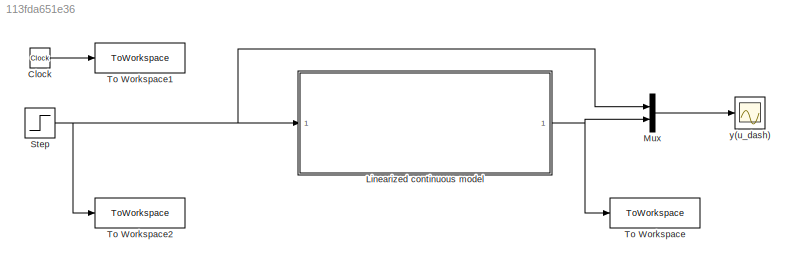
MODEL slx_113fda651e36
KIND model
CONFIG AbsTol = auto
CONFIG EnableMultiTasking = off
CONFIG FixedStep = auto
CONFIG MaxStep = auto
CONFIG MinStep = auto
CONFIG RelTol = 1e-3
CONFIG SampleTimeConstraint = Unconstrained
CONFIG SolverName = VariableStepAuto
CONFIG StartTime = 0.0
CONFIG StopTime = t_fin
BLOCK [Clock] Clock
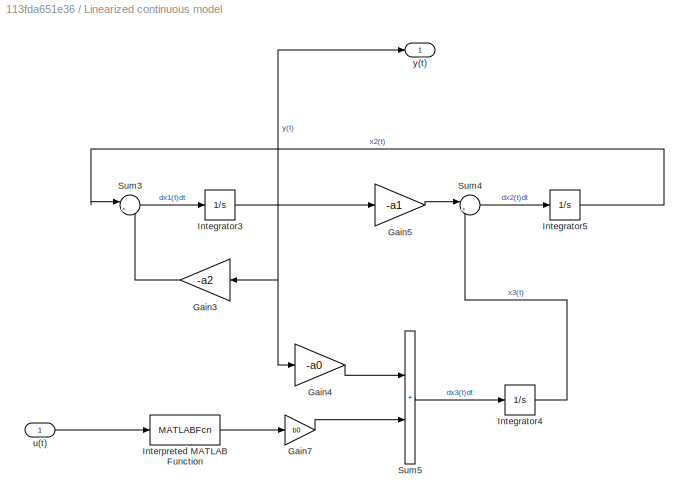
BLOCK [SubSystem] Linearized continuous model
BLOCK [Gain] Linearized continuous model/Gain3
  Gain = -a2
  NameLocation = top
BLOCK [Gain] Linearized continuous model/Gain4
  Gain = -a0
BLOCK [Gain] Linearized continuous model/Gain5
  Gain = -a1
BLOCK [Gain] Linearized continuous model/Gain7
  Gain = b0
BLOCK [Integrator] Linearized continuous model/Integrator3
BLOCK [Integrator] Linearized continuous model/Integrator4
BLOCK [Integrator] Linearized continuous model/Integrator5
BLOCK [MATLABFcn] Linearized continuous model/Interpreted MATLAB Function
  MATLABFcn = (alpha1*u + alpha2*(2*lin_point*(u - lin_point) + lin_point^2) + alpha3*(lin_point^3 + 3*lin_point^2*(u - lin_point)) + alpha4*(lin_point^4 + 4*lin_point^3*(u - lin_point)))
BLOCK [Sum] Linearized continuous model/Sum3
  Inputs = |++
BLOCK [Sum] Linearized continuous model/Sum4
  Inputs = |++
BLOCK [Sum] Linearized continuous model/Sum5
  IconShape = rectangular
BLOCK [Inport] Linearized continuous model/u(t)
BLOCK [Outport] Linearized continuous model/y(t)
BLOCK [Mux] Mux
  DisplayOption = bar
  Inputs = 2
BLOCK [Step] Step
  After = u_max
  Before = u_min
  SampleTime = 0
  Time = u_step_time
BLOCK [ToWorkspace] To Workspace
  FixptAsFi = on
  MaxDataPoints = inf
  SampleTime = -1
  SaveFormat = Timeseries
  VariableName = y_linearized
BLOCK [ToWorkspace] To Workspace1
  FixptAsFi = on
  MaxDataPoints = inf
  SampleTime = -1
  SaveFormat = Timeseries
  VariableName = t_linearized
BLOCK [ToWorkspace] To Workspace2
  FixptAsFi = on
  MaxDataPoints = inf
  SampleTime = -1
  SaveFormat = Timeseries
  VariableName = u_linearized
BLOCK [Scope] y(u_dash)
  Floating = off
  NumInputPorts = 1
  ScopeSpecificationString = Simulink.scopes.TimeScopeBlockCfg('CurrentConfiguration', extmgr.ConfigurationSet(extmgr.Configuration('Core','General UI',true),extmgr.Configuration('Core','Source UI',true),extmgr.Configuration('Sources','WiredSimulink',true),extmgr.Configuration('Visuals','Time Domain',true,'SerializedDisplays',{struct('MinYLimReal','-0.01277','MaxYLimReal','0.11253','YLabelReal','','MinYLimMag','0.00000','MaxY...<+1380ch>
LINE Clock:1 -> To Workspace1:1
LINE Linearized continuous model/Gain3:1 -> Linearized continuous model/Sum3:2
LINE Linearized continuous model/Gain4:1 -> Linearized continuous model/Sum5:1
LINE Linearized continuous model/Gain5:1 -> Linearized continuous model/Sum4:1
LINE Linearized continuous model/Gain7:1 -> Linearized continuous model/Sum5:2
NET Linearized continuous model/Integrator3:1 -> Linearized continuous model/Gain3:1, Linearized continuous model/Gain4:1, Linearized continuous model/Gain5:1, Linearized continuous model/y(t):1
LINE Linearized continuous model/Integrator4:1 -> Linearized continuous model/Sum4:2
LINE Linearized continuous model/Integrator5:1 -> Linearized continuous model/Sum3:1
LINE Linearized continuous model/Interpreted MATLAB Function:1 -> Linearized continuous model/Gain7:1
LINE Linearized continuous model/Sum3:1 -> Linearized continuous model/Integrator3:1
LINE Linearized continuous model/Sum4:1 -> Linearized continuous model/Integrator5:1
LINE Linearized continuous model/Sum5:1 -> Linearized continuous model/Integrator4:1
LINE Linearized continuous model/u(t):1 -> Linearized continuous model/Interpreted MATLAB Function:1
NET Linearized continuous model:1 -> Mux:2, To Workspace:1
LINE Mux:1 -> y(u_dash):1
NET Step:1 -> Linearized continuous model:1, Mux:1, To Workspace2:1
note: NET lines group one-source signal fan-out (src -> all destinations, sorted); 1:1 wires keep LINE
